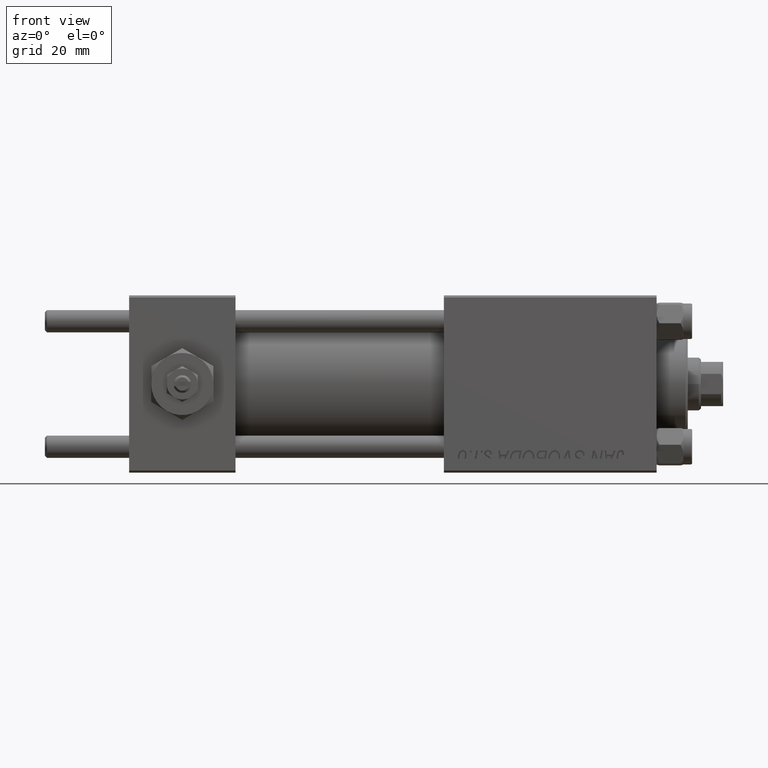
[diagram: clean part render]
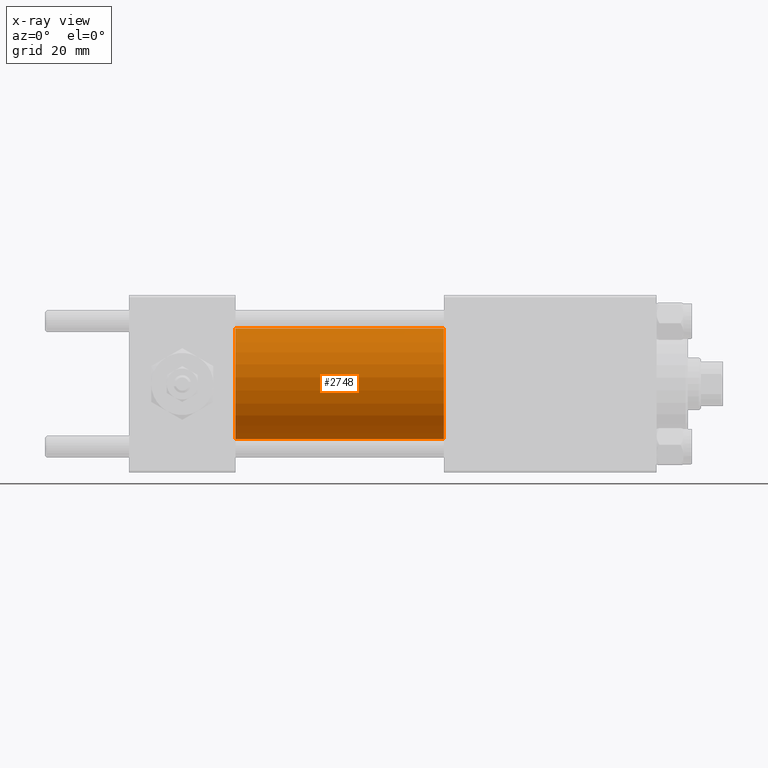
[diagram: x-ray — body ghosted, one internal face saturated and labeled with its STEP entity id]
A machine part, front view, then the same camera in x-ray: the body is ghosted and one INTERNAL B-rep face — a face not visible from any outside direction — is saturated and labeled: STEP entity #2748.
In plain terms, the highlighted cylindrical surface (partial cylindrical patch) has radius 12.5 mm, axis along (-1, -0, -0).
Its self-contained STEP definition (entity closure, byte-faithful):
#2748 = ADVANCED_FACE ( 'NONE', ( #23746 ), #27409, .F. ) ;
#3581 = LINE ( 'NONE', #43243, #23522 ) ;
#5529 = DIRECTION ( 'NONE',  ( -1.000000000000000000, -0.000000000000000000, -0.000000000000000000 ) ) ;
#5684 = DIRECTION ( 'NONE',  ( 0.000000000000000000, 0.000000000000000000, -1.000000000000000000 ) ) ;
#5830 = AXIS2_PLACEMENT_3D ( 'NONE', #38557, #41434, #5684 ) ;
#5855 = DIRECTION ( 'NONE',  ( 0.000000000000000000, 0.000000000000000000, -1.000000000000000000 ) ) ;
#5973 = ORIENTED_EDGE ( 'NONE', *, *, #11306, .F. ) ;
#6852 = CARTESIAN_POINT ( 'NONE',  ( 24.00000000000000000, 1.530808498934191127E-15, -12.49999999999999645 ) ) ;
#7063 = CARTESIAN_POINT ( 'NONE',  ( 71.00000000000001421, 0.000000000000000000, 0.000000000000000000 ) ) ;
#8245 = EDGE_CURVE ( 'NONE', #13674, #25527, #34886, .T. ) ;
#9816 = AXIS2_PLACEMENT_3D ( 'NONE', #7063, #14899, #22981 ) ;
#9865 = ORIENTED_EDGE ( 'NONE', *, *, #43594, .T. ) ;
#11306 = EDGE_CURVE ( 'NONE', #18922, #27444, #18346, .T. ) ;
#13674 = VERTEX_POINT ( 'NONE', #29102 ) ;
#14899 = DIRECTION ( 'NONE',  ( -1.000000000000000000, -0.000000000000000000, -0.000000000000000000 ) ) ;
#15279 = VECTOR ( 'NONE', #5529, 1000.000000000000000 ) ;
#17081 = CARTESIAN_POINT ( 'NONE',  ( 71.00000000000001421, 0.000000000000000000, 0.000000000000000000 ) ) ;
#18346 = CIRCLE ( 'NONE', #5830, 12.49999999999999645 ) ;
#18922 = VERTEX_POINT ( 'NONE', #29162 ) ;
#19894 = EDGE_CURVE ( 'NONE', #13674, #18922, #25362, .T. ) ;
#22981 = DIRECTION ( 'NONE',  ( 0.000000000000000000, 0.000000000000000000, 1.000000000000000000 ) ) ;
#23522 = VECTOR ( 'NONE', #46665, 1000.000000000000000 ) ;
#23746 = FACE_OUTER_BOUND ( 'NONE', #30056, .T. ) ;
#25362 = LINE ( 'NONE', #41288, #15279 ) ;
#25527 = VERTEX_POINT ( 'NONE', #40714 ) ;
#27409 = CYLINDRICAL_SURFACE ( 'NONE', #9816, 12.49999999999999645 ) ;
#27444 = VERTEX_POINT ( 'NONE', #6852 ) ;
#29102 = CARTESIAN_POINT ( 'NONE',  ( 71.00000000000001421, 0.000000000000000000, 12.49999999999999645 ) ) ;
#29162 = CARTESIAN_POINT ( 'NONE',  ( 24.00000000000000000, 0.000000000000000000, 12.49999999999999645 ) ) ;
#30056 = EDGE_LOOP ( 'NONE', ( #36290, #9865, #5973, #42481 ) ) ;
#34886 = CIRCLE ( 'NONE', #44044, 12.49999999999999645 ) ;
#36290 = ORIENTED_EDGE ( 'NONE', *, *, #8245, .T. ) ;
#36919 = DIRECTION ( 'NONE',  ( 1.000000000000000000, 0.000000000000000000, 0.000000000000000000 ) ) ;
#38557 = CARTESIAN_POINT ( 'NONE',  ( 24.00000000000000000, 0.000000000000000000, 0.000000000000000000 ) ) ;
#40714 = CARTESIAN_POINT ( 'NONE',  ( 71.00000000000001421, 1.530808498934191127E-15, -12.49999999999999645 ) ) ;
#41288 = CARTESIAN_POINT ( 'NONE',  ( 71.00000000000001421, 0.000000000000000000, 12.49999999999999645 ) ) ;
#41434 = DIRECTION ( 'NONE',  ( 1.000000000000000000, 0.000000000000000000, 0.000000000000000000 ) ) ;
#42481 = ORIENTED_EDGE ( 'NONE', *, *, #19894, .F. ) ;
#43243 = CARTESIAN_POINT ( 'NONE',  ( 71.00000000000001421, 1.530808498934191127E-15, -12.49999999999999645 ) ) ;
#43594 = EDGE_CURVE ( 'NONE', #25527, #27444, #3581, .T. ) ;
#44044 = AXIS2_PLACEMENT_3D ( 'NONE', #17081, #36919, #5855 ) ;
#46665 = DIRECTION ( 'NONE',  ( -1.000000000000000000, -0.000000000000000000, -0.000000000000000000 ) ) ;